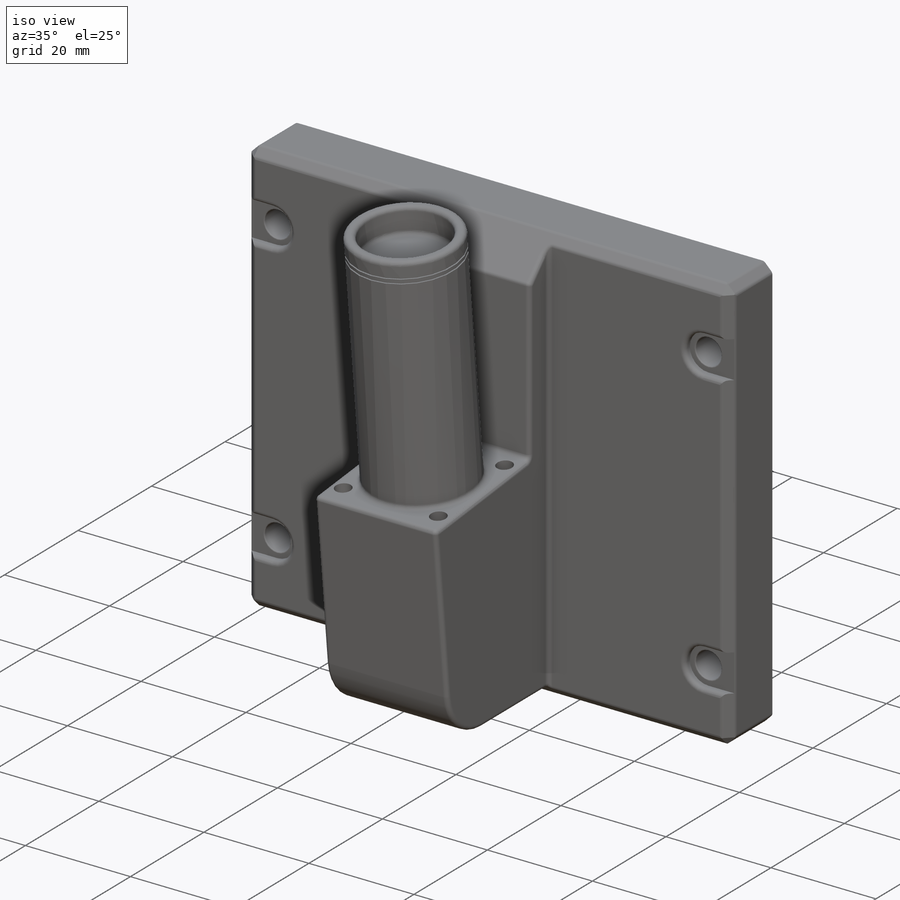
[diagram: iso view]
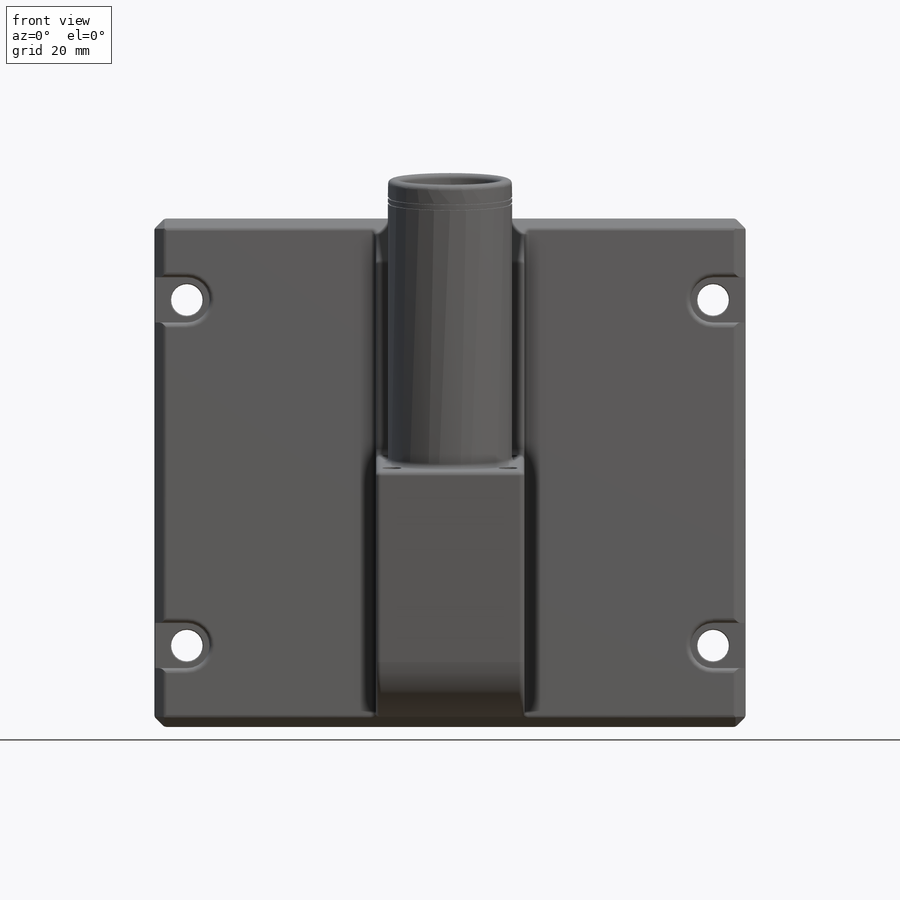
[diagram: front view]
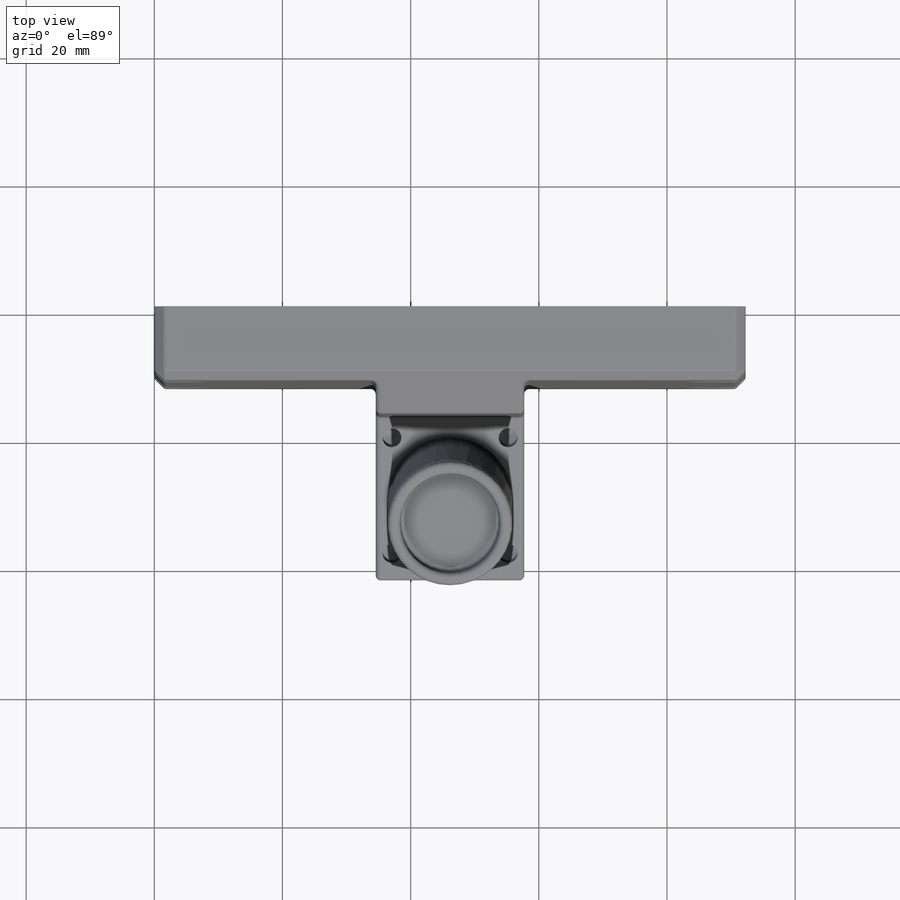
[diagram: top view]
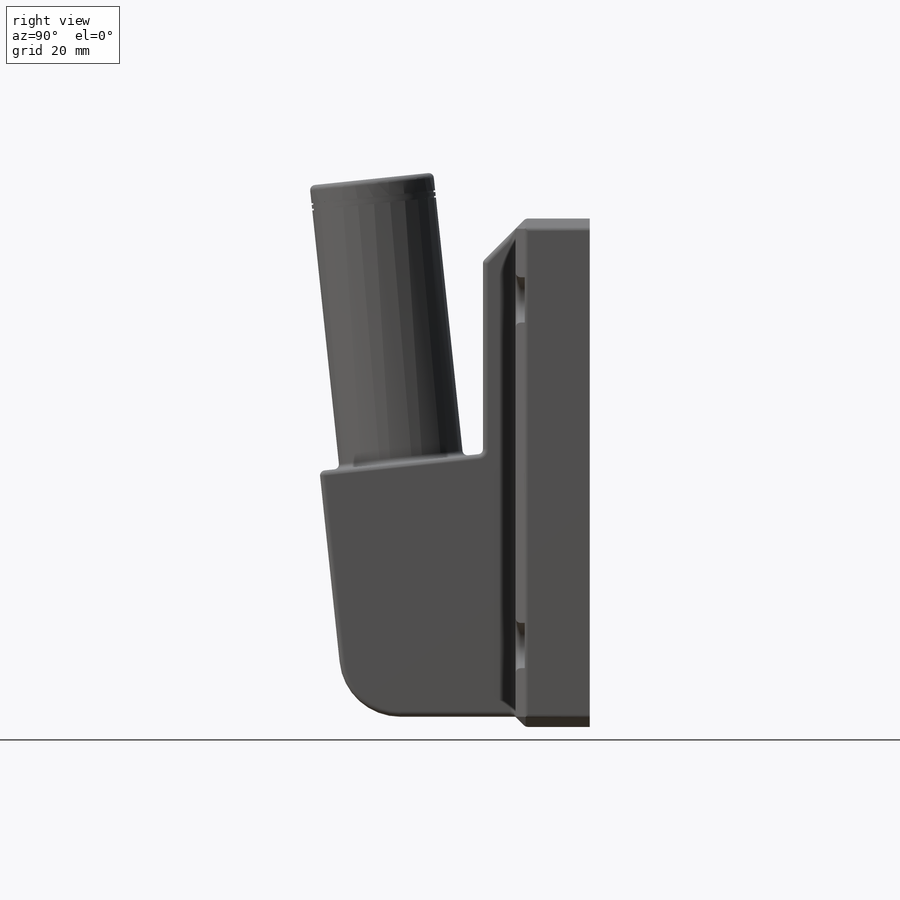
[diagram: right view]
SOLIDWORKS PART (.sldprt)
format: sldprt  version: not decoded by parser v0  size: 711,168 bytes
history: native  units: mm
features: sketch x15, fillet x7, extrude x4, chamfer x2, cut_extrude x2, hole x2, material x1, plane x1, cut_revolve x1 (+16 scaffold rows collapsed)
feature tree (51):
  scaffold x16  (default folders/planes/origin — collapsed)
  material  "Material <not specified>"
  sketch  "Sketch1"  dims[D1=92.2782mm D2=79.3369mm]
  extrude  "Extrude1"  Depth=11.5951mm
  chamfer  "Chamfer1"  Distance=1.5875mm Angle=45deg
  sketch  "Sketch2"  dims[D1=11.5951mm D2=11.5951mm]
  extrude  "Extrude2"  Depth=5.08mm
  chamfer  "Chamfer2"  Distance=5.08mm Angle=45deg
  sketch  "Sketch3"  dims[D1=41.0464mm]
  sketch  "Sketch4"  dims[c1.D2=76.1619mm c2.D2=6.0deg c2.D1=30.861mm]
  extrude  "Extrude3"  [1 undecoded]
  fillet  "Fillet1"  Radius=9.525mm
  sketch  "Sketch8"  dims[D1=19.3929mm]
  extrude  "Extrude7"  Depth=44.45mm
  sketch  "Sketch9"  dims[D1=~1.93929mm]
  cut_extrude  "Extrude8"  Depth=4.953mm
  sketch  "Sketch11"
  sketch  "3DSketch2"
  plane  "Plane2"
  sketch  "Sketch13"  dims[D1=2.794mm D2=0.254mm D3=0.8636mm D4=0.254mm D5=0.508mm]
  cut_revolve  "Cut-Revolve5"  Angle=360deg
  sketch  "Sketch14"  dims[D5=7.0612mm D1=12.7mm D2=12.7mm D3=5.08mm D4=5.08mm]
  cut_extrude  "Extrude11"  Depth=1.4351mm
  fillet  "Fillet2"  Radius=0.79375mm
  fillet  "Fillet3"  Radius=0.79375mm
  fillet  "Fillet4"  Radius=0.79375mm
  fillet  "Fillet5"  Radius=0.79375mm
  fillet  "Fillet6"  Radius=0.79375mm
  hole  "#10 (0.1935) Diameter Hole1"  Diameter=4.9149mm Depth=10.16mm
  sketch  "3DSketch3"
  sketch  "Sketch15"  dims[hole-wizard template sketch: 60 standard entries collapsed; hole parameters kept: c18.Thru Hole Depth=10.16mm]
  fillet  "Fillet7"  Radius=0.198437mm
  sketch  "Sketch16"  dims[D1=~9.06145mm D2=~9.06145mm D3=~9.06145mm D4=~9.06145mm]
  hole  "#32 (0.116) Diameter Hole1"  Diameter=2.9464mm Depth=5.08mm
  sketch  "3DSketch4"
  sketch  "Sketch17"  dims[hole-wizard template sketch: 47 standard entries collapsed; hole parameters kept: c15.Hole Depth=5.08mm c15.D3=~14.816244mm c15.Drill Angle=118.0deg]
decode coverage: 28 of 33 modeling features carry decoded parameters
note: ~ marks probable driven/reference dimensions
note: 1 parameter value undecoded
note: suppression state not decoded; provenance and decode notes live in map.json
